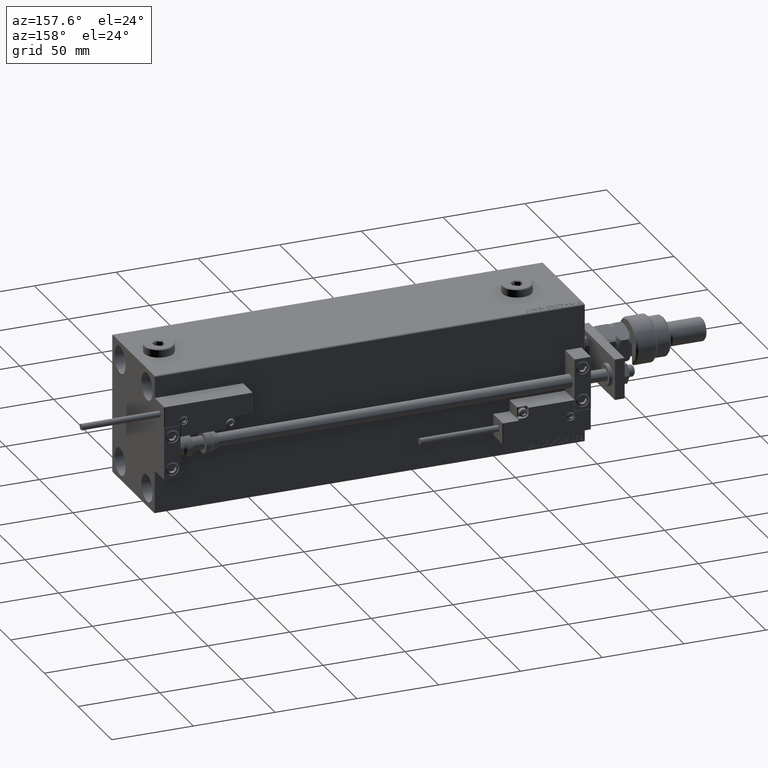
[diagram: clean part render]
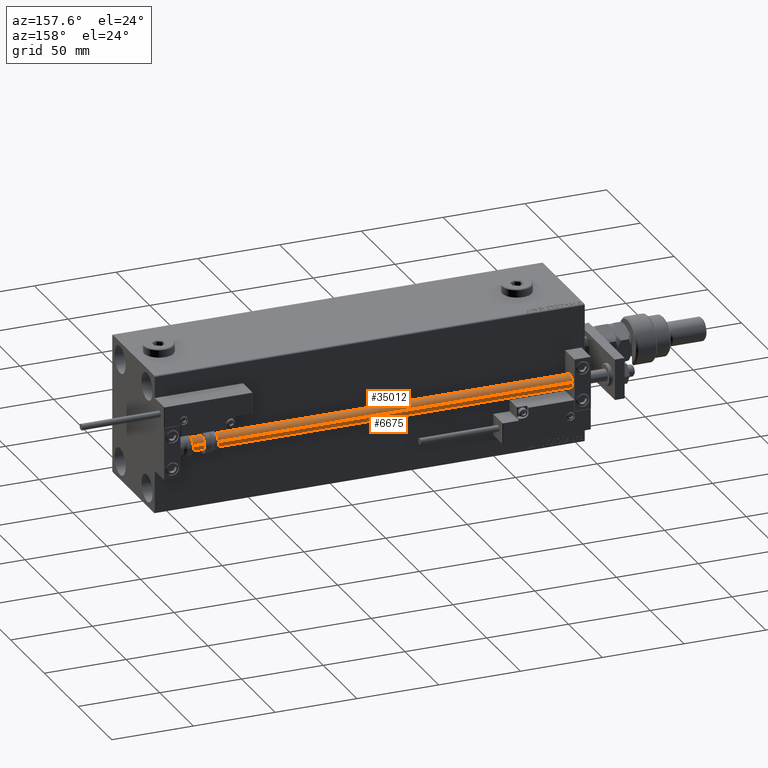
[diagram: same view with one multi-face feature highlighted, each face labeled with its STEP entity id]
A machine part, auxiliary view. The highlighted faces form ONE feature: a constant-radius fillet chain: 2 tangent blend faces with common blend radius 4 mm. The faces share edges in the B-rep.
Their STEP definitions:
[1] entity #6675 (Cylinder):
#2286 = DIRECTION ( 'NONE',  ( -1.000000000000000000, 0.000000000000000000, 0.000000000000000000 ) ) ;
#3873 = DIRECTION ( 'NONE',  ( 1.000000000000000000, 0.000000000000000000, 0.000000000000000000 ) ) ;
#4406 = DIRECTION ( 'NONE',  ( 0.000000000000000000, 0.000000000000000000, 1.000000000000000000 ) ) ;
#4550 = LINE ( 'NONE', #37543, #10136 ) ;
#5005 = DIRECTION ( 'NONE',  ( -0.000000000000000000, -0.000000000000000000, -1.000000000000000000 ) ) ;
#6675 = ADVANCED_FACE ( 'NONE', ( #45151 ), #49278, .T. ) ;
#7842 = ORIENTED_EDGE ( 'NONE', *, *, #46820, .F. ) ;
#8769 = CARTESIAN_POINT ( 'NONE',  ( 4.000000000000000000, 4.898587196589412829E-16, 2.000000000000057288 ) ) ;
#9840 = EDGE_CURVE ( 'NONE', #30928, #21656, #52961, .T. ) ;
#9957 = AXIS2_PLACEMENT_3D ( 'NONE', #50495, #51319, #46648 ) ;
#10136 = VECTOR ( 'NONE', #45796, 1000.000000000000000 ) ;
#11148 = CIRCLE ( 'NONE', #34835, 4.000000000000000000 ) ;
#11448 = CARTESIAN_POINT ( 'NONE',  ( -4.000000000000000000, 0.000000000000000000, 263.0000000000000000 ) ) ;
#16031 = CARTESIAN_POINT ( 'NONE',  ( 4.000000000000000000, 4.898587196589412829E-16, 263.0000000000000000 ) ) ;
#17901 = LINE ( 'NONE', #47593, #37622 ) ;
#18067 = ORIENTED_EDGE ( 'NONE', *, *, #43460, .F. ) ;
#18283 = EDGE_CURVE ( 'NONE', #33295, #30928, #4550, .T. ) ;
#18979 = CARTESIAN_POINT ( 'NONE',  ( -4.000000000000000000, 0.000000000000000000, 2.000000000000057288 ) ) ;
#21433 = CARTESIAN_POINT ( 'NONE',  ( 0.000000000000000000, 0.000000000000000000, 263.0000000000000000 ) ) ;
#21656 = VERTEX_POINT ( 'NONE', #8769 ) ;
#28107 = ORIENTED_EDGE ( 'NONE', *, *, #9840, .T. ) ;
#30928 = VERTEX_POINT ( 'NONE', #18979 ) ;
#31771 = VERTEX_POINT ( 'NONE', #16031 ) ;
#32636 = AXIS2_PLACEMENT_3D ( 'NONE', #49003, #44057, #2286 ) ;
#33295 = VERTEX_POINT ( 'NONE', #11448 ) ;
#34835 = AXIS2_PLACEMENT_3D ( 'NONE', #21433, #4406, #3873 ) ;
#37543 = CARTESIAN_POINT ( 'NONE',  ( -4.000000000000000000, 0.000000000000000000, 263.0000000000000000 ) ) ;
#37622 = VECTOR ( 'NONE', #5005, 1000.000000000000000 ) ;
#40469 = EDGE_LOOP ( 'NONE', ( #7842, #18067, #42717, #28107 ) ) ;
#42717 = ORIENTED_EDGE ( 'NONE', *, *, #18283, .T. ) ;
#43460 = EDGE_CURVE ( 'NONE', #33295, #31771, #11148, .T. ) ;
#44057 = DIRECTION ( 'NONE',  ( -0.000000000000000000, -0.000000000000000000, -1.000000000000000000 ) ) ;
#45151 = FACE_OUTER_BOUND ( 'NONE', #40469, .T. ) ;
#45796 = DIRECTION ( 'NONE',  ( -0.000000000000000000, -0.000000000000000000, -1.000000000000000000 ) ) ;
#46648 = DIRECTION ( 'NONE',  ( 1.000000000000000000, 0.000000000000000000, 0.000000000000000000 ) ) ;
#46820 = EDGE_CURVE ( 'NONE', #31771, #21656, #17901, .T. ) ;
#47593 = CARTESIAN_POINT ( 'NONE',  ( 4.000000000000000000, 4.898587196589412829E-16, 263.0000000000000000 ) ) ;
#49003 = CARTESIAN_POINT ( 'NONE',  ( 0.000000000000000000, 0.000000000000000000, 263.0000000000000000 ) ) ;
#49278 = CYLINDRICAL_SURFACE ( 'NONE', #32636, 4.000000000000000000 ) ;
#50495 = CARTESIAN_POINT ( 'NONE',  ( 0.000000000000000000, 0.000000000000000000, 2.000000000000057288 ) ) ;
#51319 = DIRECTION ( 'NONE',  ( -0.000000000000000000, -0.000000000000000000, 1.000000000000000000 ) ) ;
#52961 = CIRCLE ( 'NONE', #9957, 4.000000000000000000 ) ;
[2] entity #35012 (Cylinder):
#1118 = ORIENTED_EDGE ( 'NONE', *, *, #18283, .F. ) ;
#2922 = DIRECTION ( 'NONE',  ( 0.000000000000000000, 0.000000000000000000, 1.000000000000000000 ) ) ;
#4550 = LINE ( 'NONE', #37543, #10136 ) ;
#5005 = DIRECTION ( 'NONE',  ( -0.000000000000000000, -0.000000000000000000, -1.000000000000000000 ) ) ;
#5902 = CIRCLE ( 'NONE', #49774, 4.000000000000000000 ) ;
#8769 = CARTESIAN_POINT ( 'NONE',  ( 4.000000000000000000, 4.898587196589412829E-16, 2.000000000000057288 ) ) ;
#10136 = VECTOR ( 'NONE', #45796, 1000.000000000000000 ) ;
#11076 = DIRECTION ( 'NONE',  ( -0.000000000000000000, -0.000000000000000000, -1.000000000000000000 ) ) ;
#11448 = CARTESIAN_POINT ( 'NONE',  ( -4.000000000000000000, 0.000000000000000000, 263.0000000000000000 ) ) ;
#15198 = DIRECTION ( 'NONE',  ( -1.000000000000000000, 0.000000000000000000, 0.000000000000000000 ) ) ;
#15450 = EDGE_CURVE ( 'NONE', #31771, #33295, #42636, .T. ) ;
#16031 = CARTESIAN_POINT ( 'NONE',  ( 4.000000000000000000, 4.898587196589412829E-16, 263.0000000000000000 ) ) ;
#17901 = LINE ( 'NONE', #47593, #37622 ) ;
#18283 = EDGE_CURVE ( 'NONE', #33295, #30928, #4550, .T. ) ;
#18979 = CARTESIAN_POINT ( 'NONE',  ( -4.000000000000000000, 0.000000000000000000, 2.000000000000057288 ) ) ;
#21656 = VERTEX_POINT ( 'NONE', #8769 ) ;
#22657 = EDGE_CURVE ( 'NONE', #21656, #30928, #5902, .T. ) ;
#24782 = CARTESIAN_POINT ( 'NONE',  ( 0.000000000000000000, 0.000000000000000000, 2.000000000000057288 ) ) ;
#25819 = AXIS2_PLACEMENT_3D ( 'NONE', #40035, #2922, #49371 ) ;
#27585 = AXIS2_PLACEMENT_3D ( 'NONE', #44610, #11076, #15198 ) ;
#28691 = ORIENTED_EDGE ( 'NONE', *, *, #22657, .T. ) ;
#29179 = DIRECTION ( 'NONE',  ( -0.000000000000000000, -0.000000000000000000, 1.000000000000000000 ) ) ;
#30928 = VERTEX_POINT ( 'NONE', #18979 ) ;
#31771 = VERTEX_POINT ( 'NONE', #16031 ) ;
#33295 = VERTEX_POINT ( 'NONE', #11448 ) ;
#35012 = ADVANCED_FACE ( 'NONE', ( #36079 ), #52856, .T. ) ;
#36079 = FACE_OUTER_BOUND ( 'NONE', #51550, .T. ) ;
#36627 = DIRECTION ( 'NONE',  ( 1.000000000000000000, 0.000000000000000000, 0.000000000000000000 ) ) ;
#37543 = CARTESIAN_POINT ( 'NONE',  ( -4.000000000000000000, 0.000000000000000000, 263.0000000000000000 ) ) ;
#37622 = VECTOR ( 'NONE', #5005, 1000.000000000000000 ) ;
#40035 = CARTESIAN_POINT ( 'NONE',  ( 0.000000000000000000, 0.000000000000000000, 263.0000000000000000 ) ) ;
#42636 = CIRCLE ( 'NONE', #25819, 4.000000000000000000 ) ;
#44610 = CARTESIAN_POINT ( 'NONE',  ( 0.000000000000000000, 0.000000000000000000, 263.0000000000000000 ) ) ;
#45796 = DIRECTION ( 'NONE',  ( -0.000000000000000000, -0.000000000000000000, -1.000000000000000000 ) ) ;
#45814 = ORIENTED_EDGE ( 'NONE', *, *, #46820, .T. ) ;
#46820 = EDGE_CURVE ( 'NONE', #31771, #21656, #17901, .T. ) ;
#47593 = CARTESIAN_POINT ( 'NONE',  ( 4.000000000000000000, 4.898587196589412829E-16, 263.0000000000000000 ) ) ;
#49371 = DIRECTION ( 'NONE',  ( 1.000000000000000000, 0.000000000000000000, 0.000000000000000000 ) ) ;
#49774 = AXIS2_PLACEMENT_3D ( 'NONE', #24782, #29179, #36627 ) ;
#51550 = EDGE_LOOP ( 'NONE', ( #53091, #45814, #28691, #1118 ) ) ;
#52856 = CYLINDRICAL_SURFACE ( 'NONE', #27585, 4.000000000000000000 ) ;
#53091 = ORIENTED_EDGE ( 'NONE', *, *, #15450, .F. ) ;